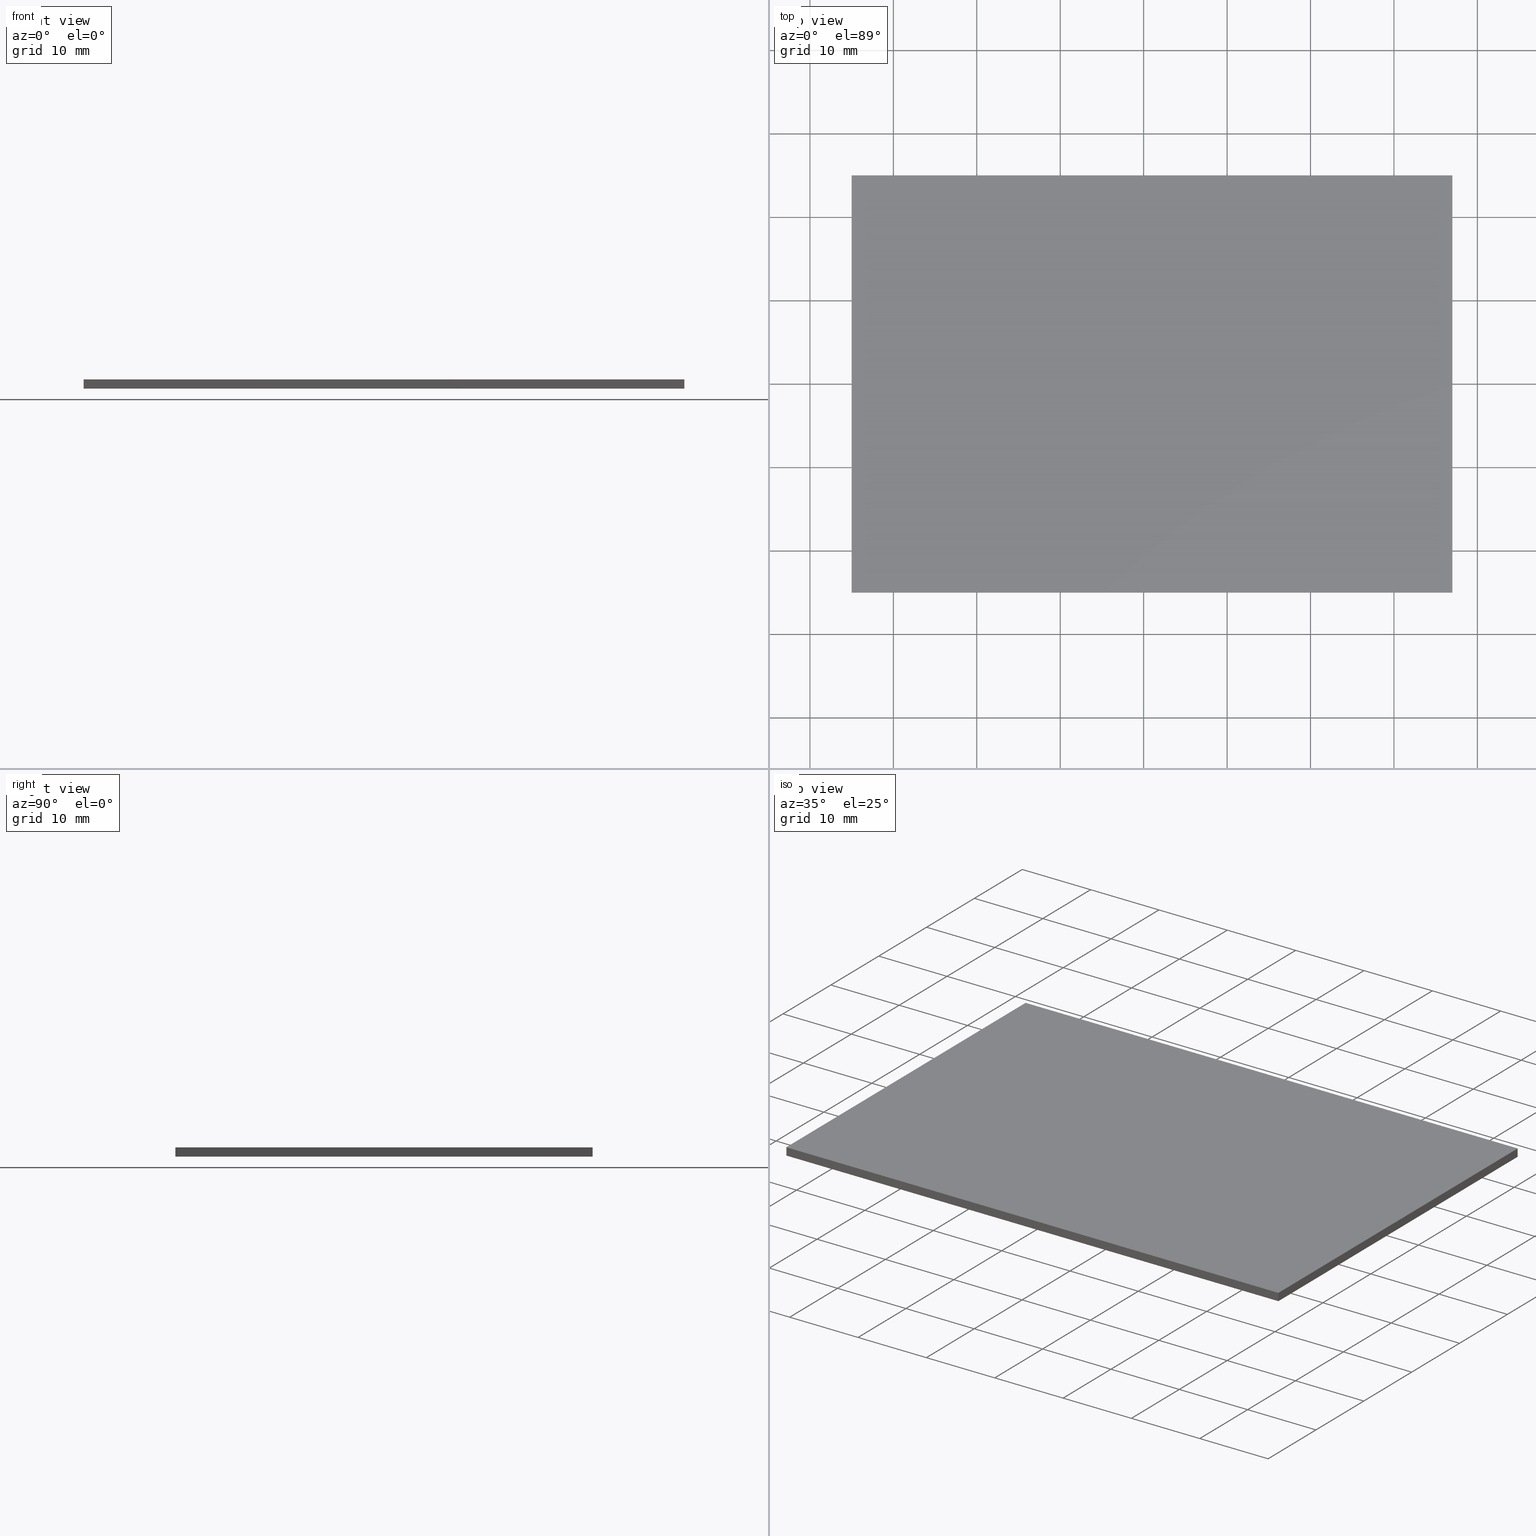
[diagram: canonical four-view strip — front | top / right | iso, engineering-drawing reading convention]
A machine part, canonical four-view strip (front | top / right | iso — engineering-drawing reading convention). The complete STEP part file that produces these views, byte-faithful:
ISO-10303-21;
HEADER;
FILE_DESCRIPTION (( 'STEP AP203' ),
    '1' );
FILE_NAME ('348512.STEP',
    '2019-07-31T08:02:52',
    ( '' ),
    ( '' ),
    'SwSTEP 2.0',
    'SolidWorks 2016',
    '' );
FILE_SCHEMA (( 'CONFIG_CONTROL_DESIGN' ));
ENDSEC;

DATA;
#1 = APPROVAL_STATUS ( 'not_yet_approved' ) ;
#2 = SECURITY_CLASSIFICATION_LEVEL ( 'unclassified' ) ;
#3 = EDGE_CURVE ( 'NONE', #109, #54, #173, .T. ) ;
#4 = LINE ( 'NONE', #106, #259 ) ;
#5 = LOCAL_TIME ( 16, 2, 52.00000000000000000, #68 ) ;
#6 = EDGE_CURVE ( 'NONE', #36, #182, #33, .T. ) ;
#7 = FACE_OUTER_BOUND ( 'NONE', #233, .T. ) ;
#8 = DATE_AND_TIME ( #98, #275 ) ;
#9 = ORIENTED_EDGE ( 'NONE', *, *, #265, .T. ) ;
#10 = COORDINATED_UNIVERSAL_TIME_OFFSET ( 8, 0, .AHEAD. ) ;
#11 = EDGE_CURVE ( 'NONE', #284, #51, #197, .T. ) ;
#12 = DIRECTION ( 'NONE',  ( 1.387778780781445700E-016, 1.000000000000000000, -0.0000000000000000000 ) ) ;
#13 = CC_DESIGN_DATE_AND_TIME_ASSIGNMENT ( #238, #162, ( #85 ) ) ;
#14 = CARTESIAN_POINT ( 'NONE',  ( -25.00000000000000000, 25.00000000000000000, 0.0000000000000000000 ) ) ;
#15 = CALENDAR_DATE ( 2019, 31, 7 ) ;
#16 = APPROVAL_STATUS ( 'not_yet_approved' ) ;
#17 = MECHANICAL_CONTEXT ( 'NONE', #45, 'mechanical' ) ;
#18 = DIRECTION ( 'NONE',  ( 0.0000000000000000000, 0.0000000000000000000, 1.000000000000000000 ) ) ;
#19 = ORIENTED_EDGE ( 'NONE', *, *, #6, .T. ) ;
#20 = DIRECTION ( 'NONE',  ( 1.387778780781445700E-016, 1.000000000000000000, -0.0000000000000000000 ) ) ;
#21 = APPROVAL_PERSON_ORGANIZATION ( #146, #200, #246 ) ;
#22 = MANIFOLD_SOLID_BREP ( '͹̨-����1', #277 ) ;
#23 = CARTESIAN_POINT ( 'NONE',  ( -25.00000000000000000, 25.00000000000000000, 1.100000000000000100 ) ) ;
#24 = EDGE_CURVE ( 'NONE', #51, #182, #203, .T. ) ;
#25 = DATE_TIME_ROLE ( 'classification_date' ) ;
#26 = FACE_OUTER_BOUND ( 'NONE', #253, .T. ) ;
#27 = LOCAL_TIME ( 16, 2, 52.00000000000000000, #222 ) ;
#28 = PERSON_AND_ORGANIZATION_ROLE ( 'classification_officer' ) ;
#29 = APPROVAL_ROLE ( '' ) ;
#30 = COORDINATED_UNIVERSAL_TIME_OFFSET ( 8, 0, .AHEAD. ) ;
#31 = AXIS2_PLACEMENT_3D ( 'NONE', #219, #161, #282 ) ;
#32 = ORGANIZATION ( 'δָ��', 'δָ��', '' ) ;
#33 = LINE ( 'NONE', #280, #81 ) ;
#34 = CC_DESIGN_PERSON_AND_ORGANIZATION_ASSIGNMENT ( #239, #92, ( #57 ) ) ;
#35 = PRODUCT_DEFINITION_SHAPE ( 'NONE', 'NONE',  #80 ) ;
#36 = VERTEX_POINT ( 'NONE', #56 ) ;
#37 = LOCAL_TIME ( 16, 2, 52.00000000000000000, #157 ) ;
#38 = CARTESIAN_POINT ( 'NONE',  ( 0.0000000000000000000, 0.0000000000000000000, 1.100000000000000100 ) ) ;
#39 = PLANE ( 'NONE',  #123 ) ;
#40 = VECTOR ( 'NONE', #12, 1000.000000000000000 ) ;
#41 = DIRECTION ( 'NONE',  ( -0.0000000000000000000, -0.0000000000000000000, -1.000000000000000000 ) ) ;
#42 = CARTESIAN_POINT ( 'NONE',  ( 46.99999999999998600, -25.00000000000000000, 1.100000000000000100 ) ) ;
#43 = ORIENTED_EDGE ( 'NONE', *, *, #6, .F. ) ;
#44 = DATE_AND_TIME ( #141, #27 ) ;
#45 = APPLICATION_CONTEXT ( 'configuration controlled 3d designs of mechanical parts and assemblies' ) ;
#46 = APPLICATION_CONTEXT ( 'configuration controlled 3d designs of mechanical parts and assemblies' ) ;
#47 = DATE_TIME_ROLE ( 'creation_date' ) ;
#48 = EDGE_CURVE ( 'NONE', #156, #51, #133, .T. ) ;
#49 = LINE ( 'NONE', #132, #302 ) ;
#50 = SECURITY_CLASSIFICATION_LEVEL ( 'unclassified' ) ;
#51 = VERTEX_POINT ( 'NONE', #306 ) ;
#52 = SHAPE_DEFINITION_REPRESENTATION ( #77, #159 ) ;
#53 = VECTOR ( 'NONE', #286, 1000.000000000000000 ) ;
#54 = VERTEX_POINT ( 'NONE', #262 ) ;
#55 = DATE_AND_TIME ( #167, #242 ) ;
#56 = CARTESIAN_POINT ( 'NONE',  ( -24.99999999999999300, -25.00000000000000000, 1.100000000000000100 ) ) ;
#57 = PRODUCT_DEFINITION_FORMATION_WITH_SPECIFIED_SOURCE ( '�κ�', '', #153, .NOT_KNOWN. ) ;
#58 = CARTESIAN_POINT ( 'NONE',  ( -25.00000000000000000, 25.00000000000000000, 1.100000000000000100 ) ) ;
#59 = DIRECTION ( 'NONE',  ( 0.0000000000000000000, -1.000000000000000000, 0.0000000000000000000 ) ) ;
#60 = LINE ( 'NONE', #42, #247 ) ;
#61 = LOCAL_TIME ( 16, 2, 52.00000000000000000, #199 ) ;
#63 = DIRECTION ( 'NONE',  ( 1.000000000000000000, 0.0000000000000000000, 0.0000000000000000000 ) ) ;
#62 = AXIS2_PLACEMENT_3D ( 'NONE', #163, #240, #267 ) ;
#64 = APPLICATION_PROTOCOL_DEFINITION ( 'international standard', 'config_control_design', 1994, #75 ) ;
#65 = PLANE ( 'NONE',  #62 ) ;
#66 = DIRECTION ( 'NONE',  ( -0.0000000000000000000, 0.0000000000000000000, 1.000000000000000000 ) ) ;
#67 = ORIENTED_EDGE ( 'NONE', *, *, #3, .F. ) ;
#68 = COORDINATED_UNIVERSAL_TIME_OFFSET ( 8, 0, .AHEAD. ) ;
#69 = AXIS2_PLACEMENT_3D ( 'NONE', #269, #189, #91 ) ;
#70 = CARTESIAN_POINT ( 'NONE',  ( -25.00000000000000000, 25.00000000000000000, 1.100000000000000100 ) ) ;
#71 = EDGE_CURVE ( 'NONE', #54, #284, #4, .T. ) ;
#72 = APPROVAL_ROLE ( '' ) ;
#73 = LINE ( 'NONE', #215, #108 ) ;
#74 = CALENDAR_DATE ( 2019, 31, 7 ) ;
#75 = APPLICATION_CONTEXT ( 'configuration controlled 3d designs of mechanical parts and assemblies' ) ;
#76 = CC_DESIGN_PERSON_AND_ORGANIZATION_ASSIGNMENT ( #261, #116, ( #57 ) ) ;
#77 = PRODUCT_DEFINITION_SHAPE ( 'NONE', 'NONE',  #160 ) ;
#78 = ORIENTED_EDGE ( 'NONE', *, *, #71, .F. ) ;
#79 = PERSON_AND_ORGANIZATION ( #231, #32 ) ;
#80 = PRODUCT_DEFINITION ( 'δ֪', '', #206, #205 ) ;
#81 = VECTOR ( 'NONE', #155, 1000.000000000000000 ) ;
#82 = APPROVAL_DATE_TIME ( #44, #281 ) ;
#83 = UNCERTAINTY_MEASURE_WITH_UNIT (LENGTH_MEASURE( 1.000000000000000100E-005 ), #95, 'distance_accuracy_value', 'NONE');
#84 = PERSON_AND_ORGANIZATION ( #231, #32 ) ;
#85 = SECURITY_CLASSIFICATION ( '', '', #50 ) ;
#86 = EDGE_CURVE ( 'NONE', #54, #156, #49, .T. ) ;
#87 = LINE ( 'NONE', #288, #125 ) ;
#88 = LOCAL_TIME ( 16, 2, 52.00000000000000000, #274 ) ;
#89 = CC_DESIGN_DATE_AND_TIME_ASSIGNMENT ( #260, #25, ( #298 ) ) ;
#90 = APPROVAL_ROLE ( '' ) ;
#91 = DIRECTION ( 'NONE',  ( 1.000000000000000000, 0.0000000000000000000, 0.0000000000000000000 ) ) ;
#92 = PERSON_AND_ORGANIZATION_ROLE ( 'creator' ) ;
#93 = LOCAL_TIME ( 16, 2, 52.00000000000000000, #272 ) ;
#94 = CARTESIAN_POINT ( 'NONE',  ( 46.99999999999999300, 25.00000000000000000, 0.0000000000000000000 ) ) ;
#95 =( LENGTH_UNIT ( ) NAMED_UNIT ( * ) SI_UNIT ( .MILLI., .METRE. ) );
#96 = PLANE ( 'NONE',  #128 ) ;
#97 = ORIENTED_EDGE ( 'NONE', *, *, #307, .T. ) ;
#98 = CALENDAR_DATE ( 2019, 31, 7 ) ;
#99 = DATE_TIME_ROLE ( 'creation_date' ) ;
#100 = AXIS2_PLACEMENT_3D ( 'NONE', #235, #59, #185 ) ;
#101 = DESIGN_CONTEXT ( 'detailed design', #75, 'design' ) ;
#102 = ORIENTED_EDGE ( 'NONE', *, *, #11, .T. ) ;
#103 = APPROVAL_DATE_TIME ( #55, #237 ) ;
#104 = CC_DESIGN_PERSON_AND_ORGANIZATION_ASSIGNMENT ( #217, #171, ( #206 ) ) ;
#105 = APPROVAL_PERSON_ORGANIZATION ( #214, #281, #221 ) ;
#106 = CARTESIAN_POINT ( 'NONE',  ( 46.99999999999999300, 25.00000000000000000, 1.100000000000000100 ) ) ;
#107 = CARTESIAN_POINT ( 'NONE',  ( -25.00000000000000000, 25.00000000000000000, 1.100000000000000100 ) ) ;
#108 = VECTOR ( 'NONE', #63, 1000.000000000000000 ) ;
#109 = VERTEX_POINT ( 'NONE', #234 ) ;
#110 = CARTESIAN_POINT ( 'NONE',  ( -24.99999999999999300, -25.00000000000000000, 1.100000000000000100 ) ) ;
#111 = PERSON_AND_ORGANIZATION ( #231, #32 ) ;
#112 = DIRECTION ( 'NONE',  ( 1.000000000000000000, 0.0000000000000000000, 0.0000000000000000000 ) ) ;
#113 = DIRECTION ( 'NONE',  ( 1.000000000000000000, 1.387778780781445700E-016, -0.0000000000000000000 ) ) ;
#114 = PRODUCT_RELATED_PRODUCT_CATEGORY ( 'detail', '', ( #131 ) ) ;
#115 = APPLICATION_PROTOCOL_DEFINITION ( 'international standard', 'config_control_design', 1994, #46 ) ;
#116 = PERSON_AND_ORGANIZATION_ROLE ( 'design_supplier' ) ;
#117 = VECTOR ( 'NONE', #183, 1000.000000000000000 ) ;
#118 = ORIENTED_EDGE ( 'NONE', *, *, #24, .T. ) ;
#119 = CC_DESIGN_PERSON_AND_ORGANIZATION_ASSIGNMENT ( #127, #295, ( #85 ) ) ;
#120 = ADVANCED_FACE ( 'NONE', ( #177 ), #308, .F. ) ;
#121 = ORIENTED_EDGE ( 'NONE', *, *, #86, .T. ) ;
#122 = DATE_AND_TIME ( #257, #5 ) ;
#123 = AXIS2_PLACEMENT_3D ( 'NONE', #70, #113, #241 ) ;
#124 = CC_DESIGN_DATE_AND_TIME_ASSIGNMENT ( #305, #99, ( #80 ) ) ;
#125 = VECTOR ( 'NONE', #20, 1000.000000000000000 ) ;
#126 = PERSON_AND_ORGANIZATION ( #231, #32 ) ;
#127 = PERSON_AND_ORGANIZATION ( #231, #32 ) ;
#128 = AXIS2_PLACEMENT_3D ( 'NONE', #263, #218, #135 ) ;
#129 = APPROVAL_PERSON_ORGANIZATION ( #79, #287, #29 ) ;
#130 = CC_DESIGN_APPROVAL ( #158, ( #85 ) ) ;
#131 = PRODUCT ( '348512', '348512', '', ( #196 ) ) ;
#132 = CARTESIAN_POINT ( 'NONE',  ( -25.00000000000000000, 25.00000000000000000, 1.100000000000000100 ) ) ;
#133 = LINE ( 'NONE', #58, #172 ) ;
#134 = APPROVAL_STATUS ( 'not_yet_approved' ) ;
#135 = DIRECTION ( 'NONE',  ( 1.000000000000000000, 0.0000000000000000000, 0.0000000000000000000 ) ) ;
#136 = ORIENTED_EDGE ( 'NONE', *, *, #170, .F. ) ;
#137 = DIRECTION ( 'NONE',  ( 1.000000000000000000, 0.0000000000000000000, 0.0000000000000000000 ) ) ;
#138 = APPROVAL_STATUS ( 'not_yet_approved' ) ;
#139 = FACE_OUTER_BOUND ( 'NONE', #299, .T. ) ;
#140 = PERSON_AND_ORGANIZATION_ROLE ( 'creator' ) ;
#141 = CALENDAR_DATE ( 2019, 31, 7 ) ;
#142 = PERSON_AND_ORGANIZATION_ROLE ( 'creator' ) ;
#143 =( GEOMETRIC_REPRESENTATION_CONTEXT ( 3 ) GLOBAL_UNCERTAINTY_ASSIGNED_CONTEXT ( ( #83 ) ) GLOBAL_UNIT_ASSIGNED_CONTEXT ( ( #95, #165, #193 ) ) REPRESENTATION_CONTEXT ( 'NONE', 'WORKASPACE' ) );
#144 = CALENDAR_DATE ( 2019, 31, 7 ) ;
#145 = PRODUCT_RELATED_PRODUCT_CATEGORY ( 'detail', '', ( #153 ) ) ;
#146 = PERSON_AND_ORGANIZATION ( #231, #32 ) ;
#147 = LINE ( 'NONE', #110, #236 ) ;
#148 = APPROVAL_PERSON_ORGANIZATION ( #126, #184, #283 ) ;
#149 = EDGE_CURVE ( 'NONE', #182, #290, #73, .T. ) ;
#150 = CC_DESIGN_PERSON_AND_ORGANIZATION_ASSIGNMENT ( #202, #142, ( #160 ) ) ;
#151 = CC_DESIGN_APPROVAL ( #184, ( #298 ) ) ;
#152 = DATE_AND_TIME ( #268, #61 ) ;
#153 = PRODUCT ( '348512', '348512', '', ( #17 ) ) ;
#154 = AXIS2_PLACEMENT_3D ( 'NONE', #243, #18, #137 ) ;
#155 = DIRECTION ( 'NONE',  ( -0.0000000000000000000, -0.0000000000000000000, -1.000000000000000000 ) ) ;
#156 = VERTEX_POINT ( 'NONE', #107 ) ;
#157 = COORDINATED_UNIVERSAL_TIME_OFFSET ( 8, 0, .AHEAD. ) ;
#158 = APPROVAL ( #16, 'δָ��' ) ;
#159 = ADVANCED_BREP_SHAPE_REPRESENTATION ( '348512', ( #22, #69 ), #143 ) ;
#160 = PRODUCT_DEFINITION ( 'δ֪', '', #57, #101 ) ;
#161 = DIRECTION ( 'NONE',  ( 0.0000000000000000000, 1.000000000000000000, 0.0000000000000000000 ) ) ;
#162 = DATE_TIME_ROLE ( 'classification_date' ) ;
#163 = CARTESIAN_POINT ( 'NONE',  ( 46.99999999999999300, 25.00000000000000000, 1.100000000000000100 ) ) ;
#164 = PLANE ( 'NONE',  #31 ) ;
#165 =( NAMED_UNIT ( * ) PLANE_ANGLE_UNIT ( ) SI_UNIT ( $, .RADIAN. ) );
#166 = ORIENTED_EDGE ( 'NONE', *, *, #71, .T. ) ;
#167 = CALENDAR_DATE ( 2019, 31, 7 ) ;
#168 = CC_DESIGN_PERSON_AND_ORGANIZATION_ASSIGNMENT ( #192, #198, ( #153 ) ) ;
#169 = ADVANCED_FACE ( 'NONE', ( #7 ), #232, .T. ) ;
#170 = EDGE_CURVE ( 'NONE', #36, #109, #147, .T. ) ;
#171 = PERSON_AND_ORGANIZATION_ROLE ( 'design_supplier' ) ;
#172 = VECTOR ( 'NONE', #304, 1000.000000000000000 ) ;
#173 = LINE ( 'NONE', #258, #40 ) ;
#174 = ORIENTED_EDGE ( 'NONE', *, *, #48, .T. ) ;
#175 = PERSON_AND_ORGANIZATION ( #231, #32 ) ;
#176 = LOCAL_TIME ( 16, 2, 52.00000000000000000, #191 ) ;
#177 = FACE_OUTER_BOUND ( 'NONE', #273, .T. ) ;
#178 = ORIENTED_EDGE ( 'NONE', *, *, #48, .F. ) ;
#179 = AXIS2_PLACEMENT_3D ( 'NONE', #38, #66, #314 ) ;
#180 = CC_DESIGN_PERSON_AND_ORGANIZATION_ASSIGNMENT ( #292, #140, ( #206 ) ) ;
#181 = EDGE_CURVE ( 'NONE', #109, #290, #60, .T. ) ;
#182 = VERTEX_POINT ( 'NONE', #313 ) ;
#183 = DIRECTION ( 'NONE',  ( 1.387778780781445700E-016, -1.000000000000000000, 0.0000000000000000000 ) ) ;
#184 = APPROVAL ( #195, 'δָ��' ) ;
#185 = DIRECTION ( 'NONE',  ( 0.0000000000000000000, -0.0000000000000000000, -1.000000000000000000 ) ) ;
#186 = FACE_OUTER_BOUND ( 'NONE', #201, .T. ) ;
#187 = EDGE_LOOP ( 'NONE', ( #97, #78, #67, #230 ) ) ;
#188 = CC_DESIGN_APPROVAL ( #281, ( #80 ) ) ;
#189 = DIRECTION ( 'NONE',  ( 0.0000000000000000000, 0.0000000000000000000, 1.000000000000000000 ) ) ;
#190 = APPROVAL_STATUS ( 'not_yet_approved' ) ;
#191 = COORDINATED_UNIVERSAL_TIME_OFFSET ( 8, 0, .AHEAD. ) ;
#192 = PERSON_AND_ORGANIZATION ( #231, #32 ) ;
#193 =( NAMED_UNIT ( * ) SI_UNIT ( $, .STERADIAN. ) SOLID_ANGLE_UNIT ( ) );
#194 = CC_DESIGN_APPROVAL ( #237, ( #206 ) ) ;
#195 = APPROVAL_STATUS ( 'not_yet_approved' ) ;
#196 = MECHANICAL_CONTEXT ( 'NONE', #270, 'mechanical' ) ;
#197 = LINE ( 'NONE', #14, #229 ) ;
#198 = PERSON_AND_ORGANIZATION_ROLE ( 'design_owner' ) ;
#199 = COORDINATED_UNIVERSAL_TIME_OFFSET ( 8, 0, .AHEAD. ) ;
#200 = APPROVAL ( #190, 'δָ��' ) ;
#201 = EDGE_LOOP ( 'NONE', ( #118, #43, #216, #174 ) ) ;
#202 = PERSON_AND_ORGANIZATION ( #231, #32 ) ;
#203 = LINE ( 'NONE', #276, #117 ) ;
#204 = CALENDAR_DATE ( 2019, 31, 7 ) ;
#205 = DESIGN_CONTEXT ( 'detailed design', #46, 'design' ) ;
#206 = PRODUCT_DEFINITION_FORMATION_WITH_SPECIFIED_SOURCE ( '�κ�', '', #131, .NOT_KNOWN. ) ;
#207 = CC_DESIGN_SECURITY_CLASSIFICATION ( #298, ( #206 ) ) ;
#208 = ORIENTED_EDGE ( 'NONE', *, *, #86, .F. ) ;
#209 = APPROVAL_DATE_TIME ( #225, #184 ) ;
#210 = DIRECTION ( 'NONE',  ( -1.000000000000000000, -0.0000000000000000000, -0.0000000000000000000 ) ) ;
#212 = DIRECTION ( 'NONE',  ( -1.000000000000000000, -0.0000000000000000000, -0.0000000000000000000 ) ) ;
#211 = CC_DESIGN_DATE_AND_TIME_ASSIGNMENT ( #152, #47, ( #160 ) ) ;
#213 = FACE_OUTER_BOUND ( 'NONE', #187, .T. ) ;
#214 = PERSON_AND_ORGANIZATION ( #231, #32 ) ;
#215 = CARTESIAN_POINT ( 'NONE',  ( -24.99999999999999300, -25.00000000000000000, 0.0000000000000000000 ) ) ;
#216 = ORIENTED_EDGE ( 'NONE', *, *, #265, .F. ) ;
#217 = PERSON_AND_ORGANIZATION ( #231, #32 ) ;
#218 = DIRECTION ( 'NONE',  ( -0.0000000000000000000, 0.0000000000000000000, 1.000000000000000000 ) ) ;
#219 = CARTESIAN_POINT ( 'NONE',  ( -24.99999999999999300, -25.00000000000000000, 1.100000000000000100 ) ) ;
#220 = CC_DESIGN_PERSON_AND_ORGANIZATION_ASSIGNMENT ( #228, #244, ( #131 ) ) ;
#221 = APPROVAL_ROLE ( '' ) ;
#222 = COORDINATED_UNIVERSAL_TIME_OFFSET ( 8, 0, .AHEAD. ) ;
#223 = APPLICATION_PROTOCOL_DEFINITION ( 'international standard', 'config_control_design', 1994, #45 ) ;
#224 = ADVANCED_FACE ( 'NONE', ( #213 ), #65, .F. ) ;
#225 = DATE_AND_TIME ( #74, #88 ) ;
#226 = DATE_AND_TIME ( #301, #176 ) ;
#227 = ORIENTED_EDGE ( 'NONE', *, *, #11, .F. ) ;
#228 = PERSON_AND_ORGANIZATION ( #231, #32 ) ;
#229 = VECTOR ( 'NONE', #212, 1000.000000000000000 ) ;
#230 = ORIENTED_EDGE ( 'NONE', *, *, #181, .T. ) ;
#231 = PERSON ( 'δָ��', 'δָ��', 'δָ��', ('δָ��'), ('δָ��'), ('δָ��') ) ;
#232 = PLANE ( 'NONE',  #179 ) ;
#233 = EDGE_LOOP ( 'NONE', ( #9, #310, #266, #121 ) ) ;
#234 = CARTESIAN_POINT ( 'NONE',  ( 46.99999999999998600, -25.00000000000000000, 1.100000000000000100 ) ) ;
#235 = CARTESIAN_POINT ( 'NONE',  ( -25.00000000000000000, 25.00000000000000000, 1.100000000000000100 ) ) ;
#236 = VECTOR ( 'NONE', #112, 1000.000000000000000 ) ;
#237 = APPROVAL ( #138, 'δָ��' ) ;
#238 = DATE_AND_TIME ( #144, #296 ) ;
#239 = PERSON_AND_ORGANIZATION ( #231, #32 ) ;
#240 = DIRECTION ( 'NONE',  ( -1.000000000000000000, 1.387778780781445700E-016, 0.0000000000000000000 ) ) ;
#241 = DIRECTION ( 'NONE',  ( -1.387778780781445700E-016, 1.000000000000000000, 0.0000000000000000000 ) ) ;
#242 = LOCAL_TIME ( 16, 2, 52.00000000000000000, #30 ) ;
#243 = CARTESIAN_POINT ( 'NONE',  ( 0.0000000000000000000, 0.0000000000000000000, 0.0000000000000000000 ) ) ;
#244 = PERSON_AND_ORGANIZATION_ROLE ( 'design_owner' ) ;
#245 = CC_DESIGN_SECURITY_CLASSIFICATION ( #85, ( #57 ) ) ;
#246 = APPROVAL_ROLE ( '' ) ;
#247 = VECTOR ( 'NONE', #41, 1000.000000000000000 ) ;
#248 = ADVANCED_FACE ( 'NONE', ( #139 ), #164, .F. ) ;
#249 = ORIENTED_EDGE ( 'NONE', *, *, #24, .F. ) ;
#250 = CC_DESIGN_PERSON_AND_ORGANIZATION_ASSIGNMENT ( #278, #28, ( #298 ) ) ;
#251 = APPROVAL_DATE_TIME ( #122, #200 ) ;
#252 = CC_DESIGN_PERSON_AND_ORGANIZATION_ASSIGNMENT ( #175, #293, ( #80 ) ) ;
#253 = EDGE_LOOP ( 'NONE', ( #249, #227, #315, #297 ) ) ;
#254 = APPROVAL_DATE_TIME ( #226, #158 ) ;
#255 = CC_DESIGN_APPROVAL ( #200, ( #57 ) ) ;
#256 = ORIENTED_EDGE ( 'NONE', *, *, #181, .F. ) ;
#257 = CALENDAR_DATE ( 2019, 31, 7 ) ;
#258 = CARTESIAN_POINT ( 'NONE',  ( 46.99999999999999300, 25.00000000000000000, 1.100000000000000100 ) ) ;
#259 = VECTOR ( 'NONE', #279, 1000.000000000000000 ) ;
#260 = DATE_AND_TIME ( #204, #93 ) ;
#261 = PERSON_AND_ORGANIZATION ( #231, #32 ) ;
#262 = CARTESIAN_POINT ( 'NONE',  ( 46.99999999999999300, 25.00000000000000000, 1.100000000000000100 ) ) ;
#263 = CARTESIAN_POINT ( 'NONE',  ( 0.0000000000000000000, 0.0000000000000000000, 0.0000000000000000000 ) ) ;
#264 = CARTESIAN_POINT ( 'NONE',  ( 46.99999999999998600, -25.00000000000000000, 0.0000000000000000000 ) ) ;
#265 = EDGE_CURVE ( 'NONE', #156, #36, #294, .T. ) ;
#266 = ORIENTED_EDGE ( 'NONE', *, *, #3, .T. ) ;
#267 = DIRECTION ( 'NONE',  ( -1.387778780781445700E-016, -1.000000000000000000, 0.0000000000000000000 ) ) ;
#268 = CALENDAR_DATE ( 2019, 31, 7 ) ;
#269 = CARTESIAN_POINT ( 'NONE',  ( 0.0000000000000000000, 0.0000000000000000000, 0.0000000000000000000 ) ) ;
#270 = APPLICATION_CONTEXT ( 'configuration controlled 3d designs of mechanical parts and assemblies' ) ;
#271 = ADVANCED_FACE ( 'NONE', ( #26 ), #96, .F. ) ;
#272 = COORDINATED_UNIVERSAL_TIME_OFFSET ( 8, 0, .AHEAD. ) ;
#273 = EDGE_LOOP ( 'NONE', ( #102, #178, #208, #166 ) ) ;
#274 = COORDINATED_UNIVERSAL_TIME_OFFSET ( 8, 0, .AHEAD. ) ;
#275 = LOCAL_TIME ( 16, 2, 52.00000000000000000, #10 ) ;
#276 = CARTESIAN_POINT ( 'NONE',  ( -25.00000000000000000, 25.00000000000000000, 0.0000000000000000000 ) ) ;
#277 = CLOSED_SHELL ( 'NONE', ( #289, #248, #224, #120, #169, #271 ) ) ;
#278 = PERSON_AND_ORGANIZATION ( #231, #32 ) ;
#279 = DIRECTION ( 'NONE',  ( -0.0000000000000000000, -0.0000000000000000000, -1.000000000000000000 ) ) ;
#280 = CARTESIAN_POINT ( 'NONE',  ( -24.99999999999999300, -25.00000000000000000, 1.100000000000000100 ) ) ;
#281 = APPROVAL ( #1, 'δָ��' ) ;
#282 = DIRECTION ( 'NONE',  ( 0.0000000000000000000, -0.0000000000000000000, 1.000000000000000000 ) ) ;
#283 = APPROVAL_ROLE ( '' ) ;
#284 = VERTEX_POINT ( 'NONE', #94 ) ;
#285 = APPROVAL_DATE_TIME ( #8, #287 ) ;
#286 = DIRECTION ( 'NONE',  ( 1.387778780781445700E-016, -1.000000000000000000, 0.0000000000000000000 ) ) ;
#287 = APPROVAL ( #134, 'δָ��' ) ;
#288 = CARTESIAN_POINT ( 'NONE',  ( 46.99999999999999300, 25.00000000000000000, 0.0000000000000000000 ) ) ;
#289 = ADVANCED_FACE ( 'NONE', ( #186 ), #39, .F. ) ;
#290 = VERTEX_POINT ( 'NONE', #264 ) ;
#291 = APPLICATION_PROTOCOL_DEFINITION ( 'international standard', 'config_control_design', 1994, #270 ) ;
#292 = PERSON_AND_ORGANIZATION ( #231, #32 ) ;
#293 = PERSON_AND_ORGANIZATION_ROLE ( 'creator' ) ;
#294 = LINE ( 'NONE', #23, #53 ) ;
#295 = PERSON_AND_ORGANIZATION_ROLE ( 'classification_officer' ) ;
#296 = LOCAL_TIME ( 16, 2, 52.00000000000000000, #311 ) ;
#297 = ORIENTED_EDGE ( 'NONE', *, *, #149, .F. ) ;
#298 = SECURITY_CLASSIFICATION ( '', '', #2 ) ;
#299 = EDGE_LOOP ( 'NONE', ( #303, #256, #136, #19 ) ) ;
#300 = APPROVAL_PERSON_ORGANIZATION ( #84, #237, #72 ) ;
#301 = CALENDAR_DATE ( 2019, 31, 7 ) ;
#302 = VECTOR ( 'NONE', #210, 1000.000000000000000 ) ;
#303 = ORIENTED_EDGE ( 'NONE', *, *, #149, .T. ) ;
#304 = DIRECTION ( 'NONE',  ( -0.0000000000000000000, -0.0000000000000000000, -1.000000000000000000 ) ) ;
#305 = DATE_AND_TIME ( #15, #37 ) ;
#307 = EDGE_CURVE ( 'NONE', #290, #284, #87, .T. ) ;
#306 = CARTESIAN_POINT ( 'NONE',  ( -25.00000000000000000, 25.00000000000000000, 0.0000000000000000000 ) ) ;
#308 = PLANE ( 'NONE',  #100 ) ;
#309 = APPROVAL_PERSON_ORGANIZATION ( #111, #158, #90 ) ;
#310 = ORIENTED_EDGE ( 'NONE', *, *, #170, .T. ) ;
#311 = COORDINATED_UNIVERSAL_TIME_OFFSET ( 8, 0, .AHEAD. ) ;
#312 = CC_DESIGN_APPROVAL ( #287, ( #160 ) ) ;
#313 = CARTESIAN_POINT ( 'NONE',  ( -24.99999999999999300, -25.00000000000000000, 0.0000000000000000000 ) ) ;
#314 = DIRECTION ( 'NONE',  ( 1.000000000000000000, 0.0000000000000000000, 0.0000000000000000000 ) ) ;
#315 = ORIENTED_EDGE ( 'NONE', *, *, #307, .F. ) ;
ENDSEC;
END-ISO-10303-21;
